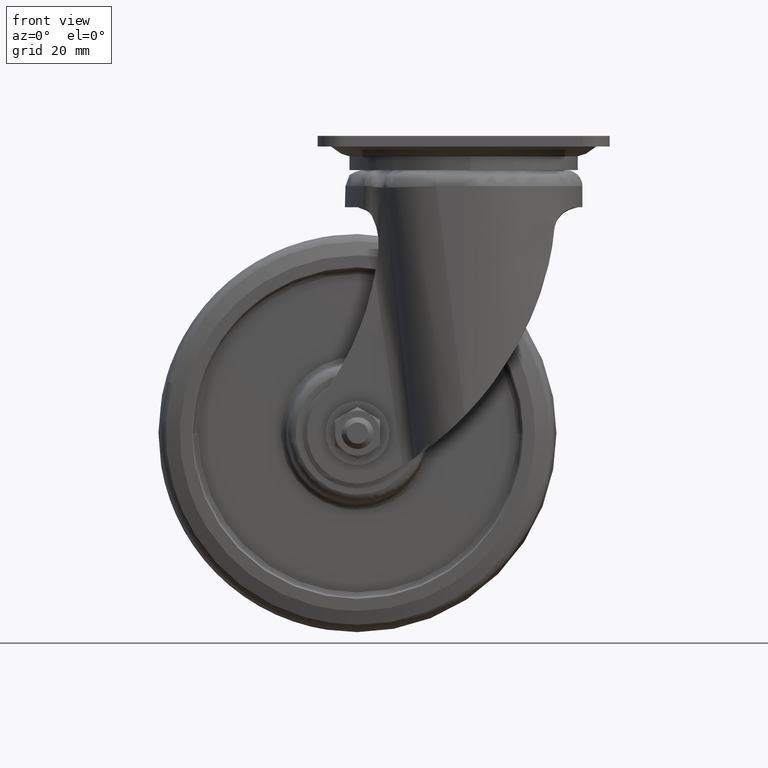
[diagram: clean part render]
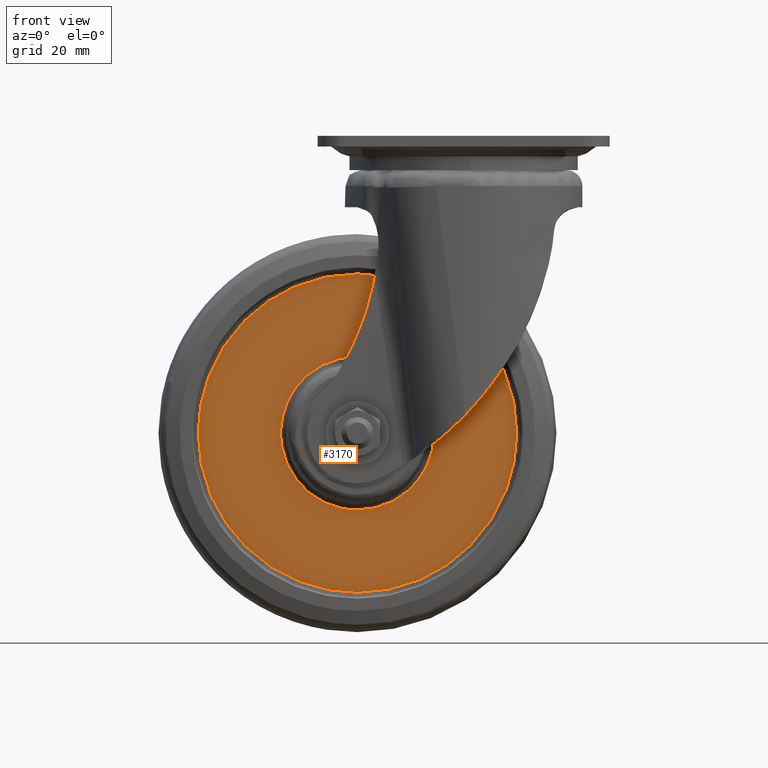
[diagram: same view with one face highlighted and labeled with its STEP entity id]
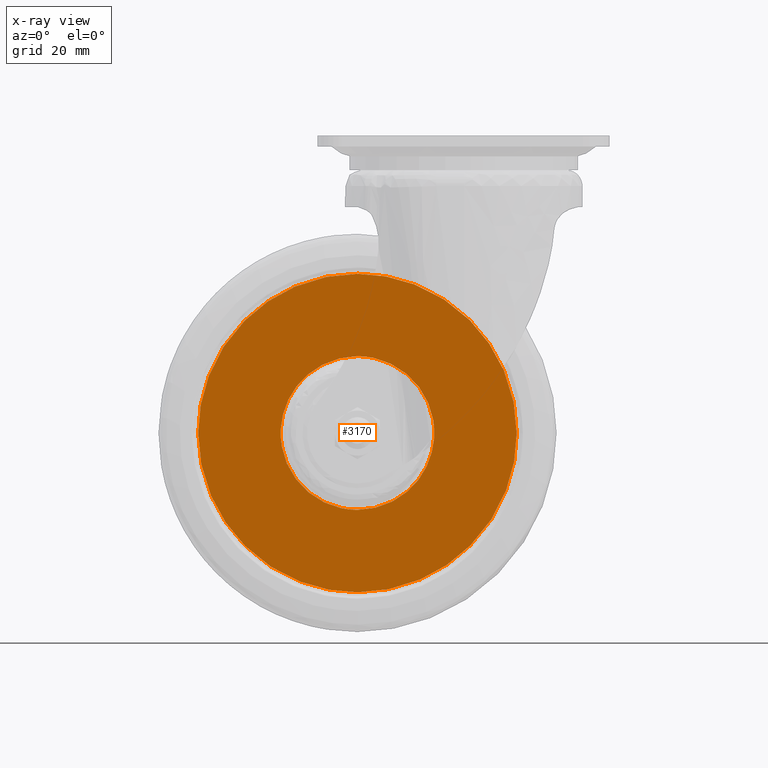
[diagram: x-ray of the same camera — body ghosted, the highlighted face saturated]
A machine part, front view. The second image highlights one B-rep face of the part: STEP entity #3170.
The next image is the same camera in x-ray: the body ghosted, the highlighted face saturated — about 0% of this face is hidden behind the body in this view.
In plain terms, the highlighted face is a freeform B-spline surface patch.
Its self-contained STEP definition (entity closure, byte-faithful):
#2964=CARTESIAN_POINT('',(-68.506975594592632,-15.500000000000000,-117.067599847714500));
#2965=VERTEX_POINT('',#2964);
#2966=CARTESIAN_POINT('',(-40.0,-15.500000000000000,-140.953898304163400));
#2967=VERTEX_POINT('',#2966);
#2968=CARTESIAN_POINT('',(-68.506975594592646,-15.500000000000002,-117.067599847714450));
#2969=CARTESIAN_POINT('',(-64.260779722320649,-15.499999999999995,-140.953898302288650));
#2970=CARTESIAN_POINT('',(-40.0,-15.500000000000000,-140.953898304163400));
#2978=(BOUNDED_CURVE()B_SPLINE_CURVE(2,(#2968,#2969,#2970),.UNSPECIFIED.,.F.,.U.)B_SPLINE_CURVE_WITH_KNOTS((3,3),(0.780081746795581,1.0),.UNSPECIFIED.)CURVE()GEOMETRIC_REPRESENTATION_ITEM()RATIONAL_B_SPLINE_CURVE((0.937995440880167,0.742349739772504,1.0))REPRESENTATION_ITEM(''));
#2979=EDGE_CURVE('',#2965,#2967,#2978,.T.);
#2981=CARTESIAN_POINT('',(-11.493024405407350,-15.500000000000000,-106.932400152285500));
#2982=VERTEX_POINT('',#2981);
#2983=CARTESIAN_POINT('',(-40.0,-15.500000000000000,-140.953898304163400));
#2984=CARTESIAN_POINT('',(-11.046101704673486,-15.500000000000005,-140.953898305734330));
#2985=CARTESIAN_POINT('',(-11.046101715219830,-15.500000000000000,-112.000000003445710));
#2986=CARTESIAN_POINT('',(-11.046101716149940,-15.499999999999996,-109.446492534334580));
#2987=CARTESIAN_POINT('',(-11.493024405407354,-15.500000000000002,-106.932400152285520));
#2995=(BOUNDED_CURVE()B_SPLINE_CURVE(2,(#2983,#2984,#2985,#2986,#2987),.UNSPECIFIED.,.F.,.U.)B_SPLINE_CURVE_WITH_KNOTS((3,2,3),(0.0,0.250000000000000,0.280081746795581),.UNSPECIFIED.)CURVE()GEOMETRIC_REPRESENTATION_ITEM()RATIONAL_B_SPLINE_CURVE((1.0,0.707106781186547,1.0,0.964757041414044,0.937995440880167))REPRESENTATION_ITEM(''));
#2996=EDGE_CURVE('',#2967,#2982,#2995,.T.);
#3059=CARTESIAN_POINT('',(-40.0,-15.500000000000000,-83.046101695836612));
#3060=VERTEX_POINT('',#3059);
#3061=CARTESIAN_POINT('',(-40.0,-15.500000000000000,-83.046101695836612));
#3062=CARTESIAN_POINT('',(-68.953898295326510,-15.500000000000005,-83.046101694265701));
#3063=CARTESIAN_POINT('',(-68.953898284780166,-15.500000000000000,-111.999999996554290));
#3064=CARTESIAN_POINT('',(-68.953898283850066,-15.499999999999996,-114.553507465665350));
#3065=CARTESIAN_POINT('',(-68.506975594592646,-15.500000000000002,-117.067599847714450));
#3073=(BOUNDED_CURVE()B_SPLINE_CURVE(2,(#3061,#3062,#3063,#3064,#3065),.UNSPECIFIED.,.F.,.U.)B_SPLINE_CURVE_WITH_KNOTS((3,2,3),(0.500000000000000,0.750000000000000,0.780081746795581),.UNSPECIFIED.)CURVE()GEOMETRIC_REPRESENTATION_ITEM()RATIONAL_B_SPLINE_CURVE((1.0,0.707106781186547,1.0,0.964757041414044,0.937995440880167))REPRESENTATION_ITEM(''));
#3074=EDGE_CURVE('',#3060,#2965,#3073,.T.);
#3081=CARTESIAN_POINT('',(-11.493024405407354,-15.500000000000002,-106.932400152285520));
#3082=CARTESIAN_POINT('',(-15.739220277679342,-15.499999999999995,-83.046101697711407));
#3083=CARTESIAN_POINT('',(-40.0,-15.500000000000000,-83.046101695836612));
#3091=(BOUNDED_CURVE()B_SPLINE_CURVE(2,(#3081,#3082,#3083),.UNSPECIFIED.,.F.,.U.)B_SPLINE_CURVE_WITH_KNOTS((3,3),(0.280081746795581,0.500000000000000),.UNSPECIFIED.)CURVE()GEOMETRIC_REPRESENTATION_ITEM()RATIONAL_B_SPLINE_CURVE((0.937995440880167,0.742349739772504,1.0))REPRESENTATION_ITEM(''));
#3092=EDGE_CURVE('',#2982,#3060,#3091,.T.);
#3097=CARTESIAN_POINT('',(-105.993999773230600,-15.500000000000000,-46.006000232583297));
#3098=CARTESIAN_POINT('',(-105.993999773230600,-15.500000000000000,-177.994002986067500));
#3099=CARTESIAN_POINT('',(25.994002991881370,-15.500000000000000,-46.006000232583297));
#3100=CARTESIAN_POINT('',(25.994002991881370,-15.500000000000000,-177.994002986067500));
#3101=B_SPLINE_SURFACE_WITH_KNOTS('',1,1,((#3097,#3099),(#3098,#3100)),.UNSPECIFIED.,.F.,.F.,.U.,(2,2),(2,2),(0.0,131.988002753484210),(0.0,131.988002765111990),.UNSPECIFIED.);
#3102=CARTESIAN_POINT('',(-40.0,-15.500000000000000,-172.0));
#3103=VERTEX_POINT('',#3102);
#3104=CARTESIAN_POINT('',(20.000000005285809,-15.500000000000000,-112.0));
#3105=VERTEX_POINT('',#3104);
#3106=CARTESIAN_POINT('',(-40.0,-15.500000000000000,-172.0));
#3107=CARTESIAN_POINT('',(20.000000002642878,-15.500000000000004,-172.000000000000030));
#3108=CARTESIAN_POINT('',(20.000000005285813,-15.500000000000004,-112.000000000000030));
#3116=(BOUNDED_CURVE()B_SPLINE_CURVE(2,(#3106,#3107,#3108),.UNSPECIFIED.,.F.,.U.)B_SPLINE_CURVE_WITH_KNOTS((3,3),(0.0,0.250000000000000),.UNSPECIFIED.)CURVE()GEOMETRIC_REPRESENTATION_ITEM()RATIONAL_B_SPLINE_CURVE((1.0,0.707106781186548,1.000000000000000))REPRESENTATION_ITEM(''));
#3117=EDGE_CURVE('',#3103,#3105,#3116,.T.);
#3118=ORIENTED_EDGE('',*,*,#3117,.T.);
#3119=CARTESIAN_POINT('',(-40.0,-15.500000000000000,-52.000000000000007));
#3120=VERTEX_POINT('',#3119);
#3121=CARTESIAN_POINT('',(20.000000005285820,-15.500000000000011,-112.000000000000100));
#3122=CARTESIAN_POINT('',(20.000000002642942,-15.500000000000005,-52.0));
#3123=CARTESIAN_POINT('',(-40.0,-15.500000000000000,-52.000000000000007));
#3131=(BOUNDED_CURVE()B_SPLINE_CURVE(2,(#3121,#3122,#3123),.UNSPECIFIED.,.F.,.U.)B_SPLINE_CURVE_WITH_KNOTS((3,3),(0.250000000000000,0.500000000000000),.UNSPECIFIED.)CURVE()GEOMETRIC_REPRESENTATION_ITEM()RATIONAL_B_SPLINE_CURVE((1.0,0.707106781186547,1.0))REPRESENTATION_ITEM(''));
#3132=EDGE_CURVE('',#3105,#3120,#3131,.T.);
#3133=ORIENTED_EDGE('',*,*,#3132,.T.);
#3134=CARTESIAN_POINT('',(-100.000000005285800,-15.500000000000000,-112.0));
#3135=VERTEX_POINT('',#3134);
#3136=CARTESIAN_POINT('',(-40.0,-15.500000000000000,-52.000000000000007));
#3137=CARTESIAN_POINT('',(-100.000000002642910,-15.500000000000005,-52.0));
#3138=CARTESIAN_POINT('',(-100.000000005285800,-15.500000000000000,-112.0));
#3146=(BOUNDED_CURVE()B_SPLINE_CURVE(2,(#3136,#3137,#3138),.UNSPECIFIED.,.F.,.U.)B_SPLINE_CURVE_WITH_KNOTS((3,3),(0.500000000000000,0.750000000000000),.UNSPECIFIED.)CURVE()GEOMETRIC_REPRESENTATION_ITEM()RATIONAL_B_SPLINE_CURVE((1.0,0.707106781186547,1.0))REPRESENTATION_ITEM(''));
#3147=EDGE_CURVE('',#3120,#3135,#3146,.T.);
#3148=ORIENTED_EDGE('',*,*,#3147,.T.);
#3149=CARTESIAN_POINT('',(-100.000000005285800,-15.500000000000000,-112.0));
#3150=CARTESIAN_POINT('',(-100.000000002642910,-15.500000000000005,-172.000000000000060));
#3151=CARTESIAN_POINT('',(-40.0,-15.500000000000000,-172.0));
#3159=(BOUNDED_CURVE()B_SPLINE_CURVE(2,(#3149,#3150,#3151),.UNSPECIFIED.,.F.,.U.)B_SPLINE_CURVE_WITH_KNOTS((3,3),(0.750000000000000,1.0),.UNSPECIFIED.)CURVE()GEOMETRIC_REPRESENTATION_ITEM()RATIONAL_B_SPLINE_CURVE((1.0,0.707106781186547,1.0))REPRESENTATION_ITEM(''));
#3160=EDGE_CURVE('',#3135,#3103,#3159,.T.);
#3161=ORIENTED_EDGE('',*,*,#3160,.T.);
#3162=EDGE_LOOP('',(#3118,#3133,#3148,#3161));
#3163=FACE_OUTER_BOUND('',#3162,.T.);
#3164=ORIENTED_EDGE('',*,*,#2996,.F.);
#3165=ORIENTED_EDGE('',*,*,#2979,.F.);
#3166=ORIENTED_EDGE('',*,*,#3074,.F.);
#3167=ORIENTED_EDGE('',*,*,#3092,.F.);
#3168=EDGE_LOOP('',(#3164,#3165,#3166,#3167));
#3169=FACE_BOUND('',#3168,.T.);
#3170=ADVANCED_FACE('',(#3163,#3169),#3101,.T.);